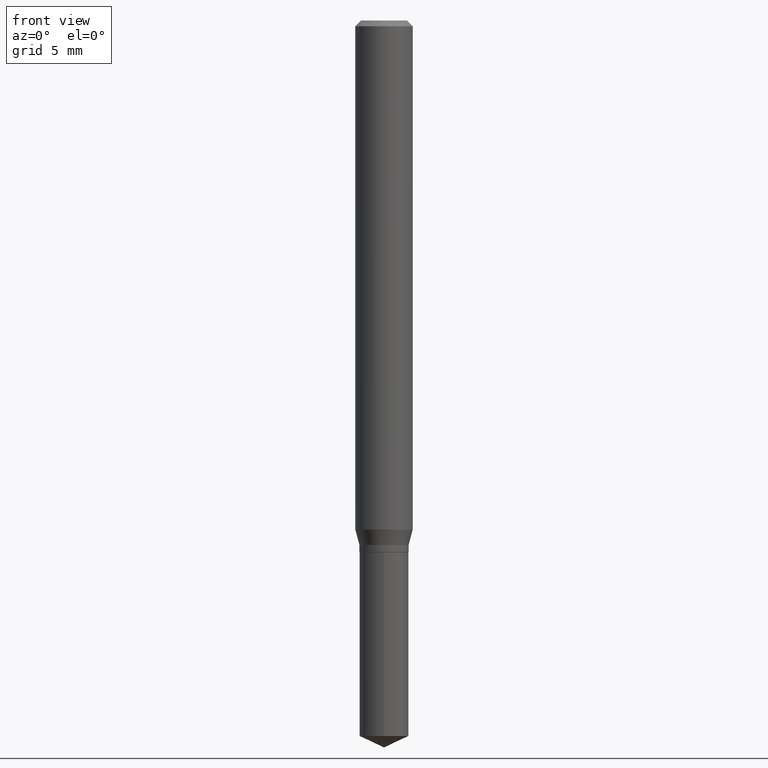
[diagram: clean part render]
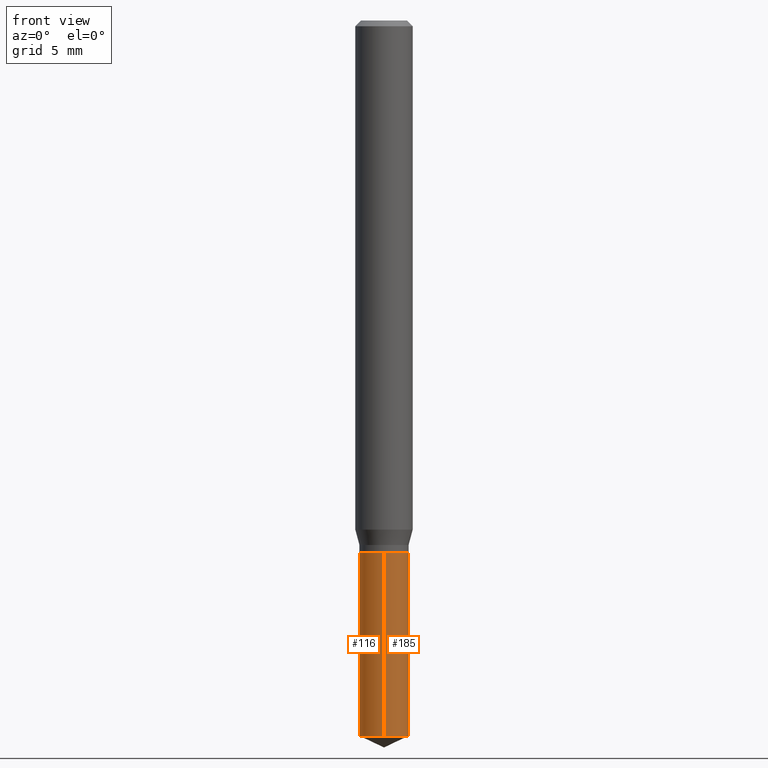
[diagram: same view with one multi-face feature highlighted, each face labeled with its STEP entity id]
A machine part, front view. The highlighted faces form ONE feature: a constant-radius fillet chain: 2 tangent blend faces with common blend radius 1.2852 mm. The faces share edges in the B-rep.
Their STEP definitions:
[1] entity #116 (Cylinder):
#1 = CARTESIAN_POINT ( 'NONE',  ( 3.595346242946467784E-16, 0.05059999999999487130, -1.472504832497357530 ) ) ;
#4 = VERTEX_POINT ( 'NONE', #1 ) ;
#24 = EDGE_CURVE ( 'NONE', #4, #465, #54, .T. ) ;
#37 = DIRECTION ( 'NONE',  ( -2.445458899330790108E-29, 3.491495526022433205E-15, 1.000000000000000000 ) ) ;
#51 = CARTESIAN_POINT ( 'NONE',  ( 2.676565608369631794E-29, -3.821426325363822773E-15, -1.094499999999999806 ) ) ;
#53 = ORIENTED_EDGE ( 'NONE', *, *, #370, .F. ) ;
#54 = CIRCLE ( 'NONE', #455, 0.05059999999999999915 ) ;
#93 = DIRECTION ( 'NONE',  ( -2.445458899330790108E-29, 3.491495526022433599E-15, 1.000000000000000000 ) ) ;
#116 = ADVANCED_FACE ( 'NONE', ( #360 ), #206, .T. ) ;
#152 = VECTOR ( 'NONE', #93, 39.37007874015748143 ) ;
#161 = EDGE_CURVE ( 'NONE', #465, #387, #327, .T. ) ;
#164 = ORIENTED_EDGE ( 'NONE', *, *, #161, .T. ) ;
#172 = CARTESIAN_POINT ( 'NONE',  ( -3.533379114908983200E-16, -0.05060000000000382248, -1.094499999999999806 ) ) ;
#184 = DIRECTION ( 'NONE',  ( -2.445458899330790108E-29, 3.491495526022433205E-15, 1.000000000000000000 ) ) ;
#206 = CYLINDRICAL_SURFACE ( 'NONE', #442, 0.05059999999999999915 ) ;
#240 = VECTOR ( 'NONE', #345, 39.37007874015748143 ) ;
#244 = ORIENTED_EDGE ( 'NONE', *, *, #24, .T. ) ;
#247 = EDGE_LOOP ( 'NONE', ( #325, #244, #164, #53 ) ) ;
#268 = LINE ( 'NONE', #342, #240 ) ;
#274 = DIRECTION ( 'NONE',  ( -6.982962677686265922E-15, -1.000000000000000000, 2.699454539193936094E-15 ) ) ;
#277 = EDGE_CURVE ( 'NONE', #4, #397, #268, .T. ) ;
#315 = AXIS2_PLACEMENT_3D ( 'NONE', #452, #184, #274 ) ;
#325 = ORIENTED_EDGE ( 'NONE', *, *, #277, .F. ) ;
#327 = LINE ( 'NONE', #172, #152 ) ;
#342 = CARTESIAN_POINT ( 'NONE',  ( 3.595346242946374106E-16, 0.05059999999999617581, -1.094500000000000028 ) ) ;
#345 = DIRECTION ( 'NONE',  ( -2.445458899330790108E-29, 3.491495526022433599E-15, 1.000000000000000000 ) ) ;
#360 = FACE_OUTER_BOUND ( 'NONE', #247, .T. ) ;
#370 = EDGE_CURVE ( 'NONE', #397, #387, #392, .T. ) ;
#385 = CARTESIAN_POINT ( 'NONE',  ( -3.533379114908891002E-16, -0.05060000000000515474, -1.472504832497356864 ) ) ;
#387 = VERTEX_POINT ( 'NONE', #414 ) ;
#389 = CARTESIAN_POINT ( 'NONE',  ( 3.600960889990339027E-29, -5.141228506843204661E-15, -1.472504832497357086 ) ) ;
#392 = CIRCLE ( 'NONE', #315, 0.05059999999999999915 ) ;
#397 = VERTEX_POINT ( 'NONE', #406 ) ;
#406 = CARTESIAN_POINT ( 'NONE',  ( 3.595346242946467291E-16, 0.05059999999999618275, -1.094500000000000028 ) ) ;
#414 = CARTESIAN_POINT ( 'NONE',  ( -3.533379114908983200E-16, -0.05060000000000382248, -1.094499999999999806 ) ) ;
#430 = DIRECTION ( 'NONE',  ( -6.982962677686265922E-15, -1.000000000000000000, 2.699454539193936094E-15 ) ) ;
#442 = AXIS2_PLACEMENT_3D ( 'NONE', #51, #471, #430 ) ;
#452 = CARTESIAN_POINT ( 'NONE',  ( 2.676565608369631794E-29, -3.821426325363822773E-15, -1.094499999999999806 ) ) ;
#455 = AXIS2_PLACEMENT_3D ( 'NONE', #389, #37, #460 ) ;
#460 = DIRECTION ( 'NONE',  ( -6.982962677686265922E-15, -1.000000000000000000, 5.398909078387872188E-15 ) ) ;
#465 = VERTEX_POINT ( 'NONE', #385 ) ;
#471 = DIRECTION ( 'NONE',  ( -2.445458899330790108E-29, 3.491495526022433205E-15, 1.000000000000000000 ) ) ;
[2] entity #185 (Cylinder):
#1 = CARTESIAN_POINT ( 'NONE',  ( 3.595346242946467784E-16, 0.05059999999999487130, -1.472504832497357530 ) ) ;
#4 = VERTEX_POINT ( 'NONE', #1 ) ;
#20 = DIRECTION ( 'NONE',  ( -2.445458899330790108E-29, 3.491495526022433205E-15, 1.000000000000000000 ) ) ;
#49 = FACE_OUTER_BOUND ( 'NONE', #421, .T. ) ;
#70 = CARTESIAN_POINT ( 'NONE',  ( 3.600960889990339027E-29, -5.141228506843204661E-15, -1.472504832497357086 ) ) ;
#93 = DIRECTION ( 'NONE',  ( -2.445458899330790108E-29, 3.491495526022433599E-15, 1.000000000000000000 ) ) ;
#106 = CARTESIAN_POINT ( 'NONE',  ( 2.676565608369631794E-29, -3.821426325363822773E-15, -1.094499999999999806 ) ) ;
#117 = DIRECTION ( 'NONE',  ( -6.982962677686265922E-15, -1.000000000000000000, 5.398909078387872188E-15 ) ) ;
#124 = DIRECTION ( 'NONE',  ( -2.445458899330790108E-29, 3.491495526022433205E-15, 1.000000000000000000 ) ) ;
#134 = AXIS2_PLACEMENT_3D ( 'NONE', #70, #151, #117 ) ;
#151 = DIRECTION ( 'NONE',  ( -2.445458899330790108E-29, 3.491495526022433205E-15, 1.000000000000000000 ) ) ;
#152 = VECTOR ( 'NONE', #93, 39.37007874015748143 ) ;
#161 = EDGE_CURVE ( 'NONE', #465, #387, #327, .T. ) ;
#167 = CIRCLE ( 'NONE', #134, 0.05059999999999999915 ) ;
#172 = CARTESIAN_POINT ( 'NONE',  ( -3.533379114908983200E-16, -0.05060000000000382248, -1.094499999999999806 ) ) ;
#185 = ADVANCED_FACE ( 'NONE', ( #49 ), #364, .T. ) ;
#186 = CIRCLE ( 'NONE', #233, 0.05059999999999999915 ) ;
#233 = AXIS2_PLACEMENT_3D ( 'NONE', #279, #124, #487 ) ;
#240 = VECTOR ( 'NONE', #345, 39.37007874015748143 ) ;
#260 = ORIENTED_EDGE ( 'NONE', *, *, #341, .T. ) ;
#268 = LINE ( 'NONE', #342, #240 ) ;
#277 = EDGE_CURVE ( 'NONE', #4, #397, #268, .T. ) ;
#279 = CARTESIAN_POINT ( 'NONE',  ( 2.676565608369631794E-29, -3.821426325363822773E-15, -1.094499999999999806 ) ) ;
#294 = AXIS2_PLACEMENT_3D ( 'NONE', #106, #20, #434 ) ;
#327 = LINE ( 'NONE', #172, #152 ) ;
#341 = EDGE_CURVE ( 'NONE', #465, #4, #167, .T. ) ;
#342 = CARTESIAN_POINT ( 'NONE',  ( 3.595346242946374106E-16, 0.05059999999999617581, -1.094500000000000028 ) ) ;
#345 = DIRECTION ( 'NONE',  ( -2.445458899330790108E-29, 3.491495526022433599E-15, 1.000000000000000000 ) ) ;
#364 = CYLINDRICAL_SURFACE ( 'NONE', #294, 0.05059999999999999915 ) ;
#385 = CARTESIAN_POINT ( 'NONE',  ( -3.533379114908891002E-16, -0.05060000000000515474, -1.472504832497356864 ) ) ;
#387 = VERTEX_POINT ( 'NONE', #414 ) ;
#397 = VERTEX_POINT ( 'NONE', #406 ) ;
#406 = CARTESIAN_POINT ( 'NONE',  ( 3.595346242946467291E-16, 0.05059999999999618275, -1.094500000000000028 ) ) ;
#414 = CARTESIAN_POINT ( 'NONE',  ( -3.533379114908983200E-16, -0.05060000000000382248, -1.094499999999999806 ) ) ;
#421 = EDGE_LOOP ( 'NONE', ( #260, #467, #439, #435 ) ) ;
#426 = EDGE_CURVE ( 'NONE', #387, #397, #186, .T. ) ;
#434 = DIRECTION ( 'NONE',  ( -6.982962677686265922E-15, -1.000000000000000000, 2.699454539193936094E-15 ) ) ;
#435 = ORIENTED_EDGE ( 'NONE', *, *, #161, .F. ) ;
#439 = ORIENTED_EDGE ( 'NONE', *, *, #426, .F. ) ;
#465 = VERTEX_POINT ( 'NONE', #385 ) ;
#467 = ORIENTED_EDGE ( 'NONE', *, *, #277, .T. ) ;
#487 = DIRECTION ( 'NONE',  ( -6.982962677686265922E-15, -1.000000000000000000, 2.699454539193936094E-15 ) ) ;